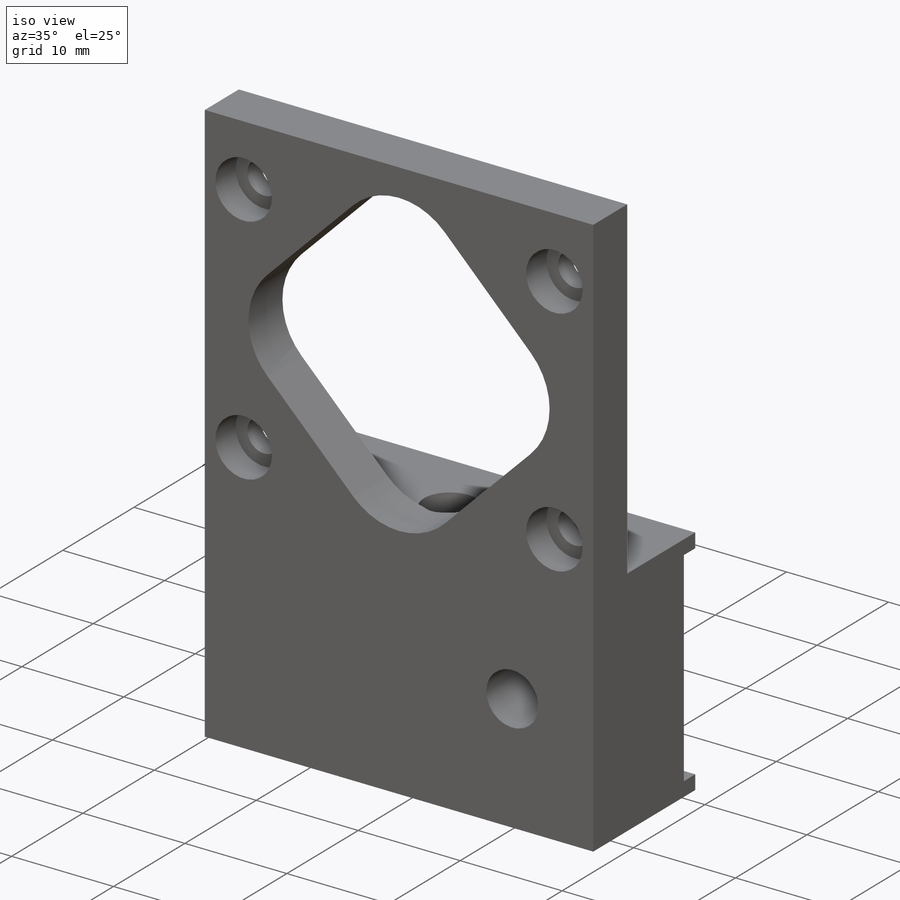
[diagram: iso view]
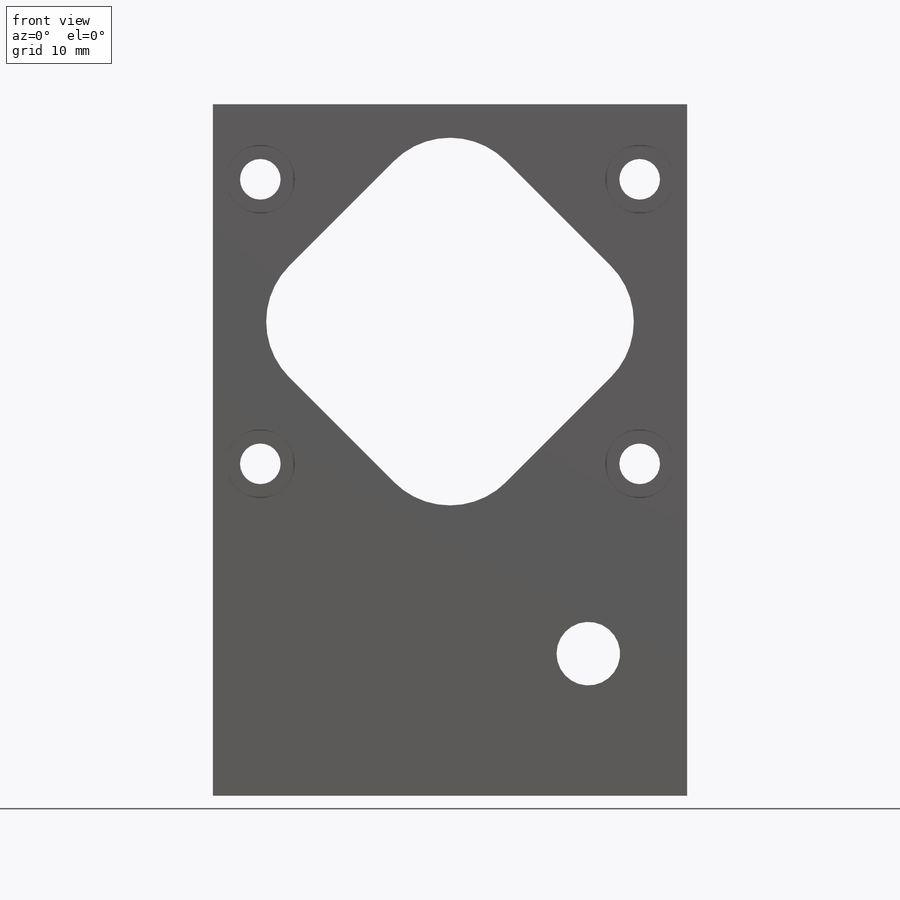
[diagram: front view]
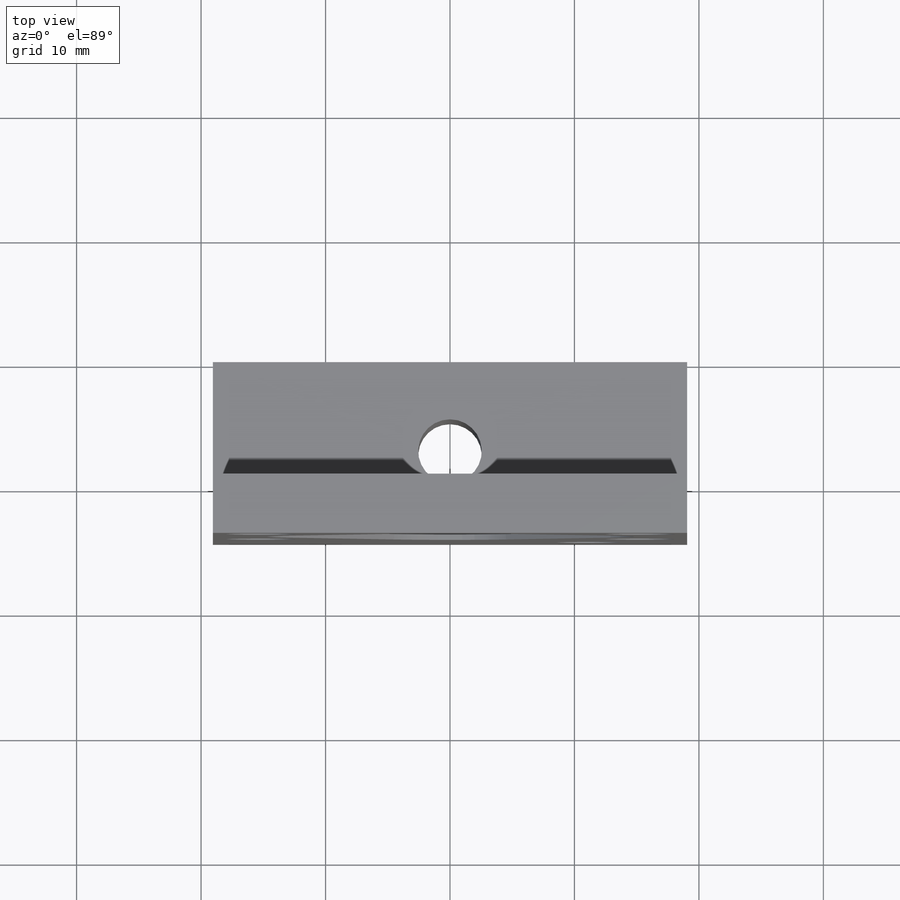
[diagram: top view]
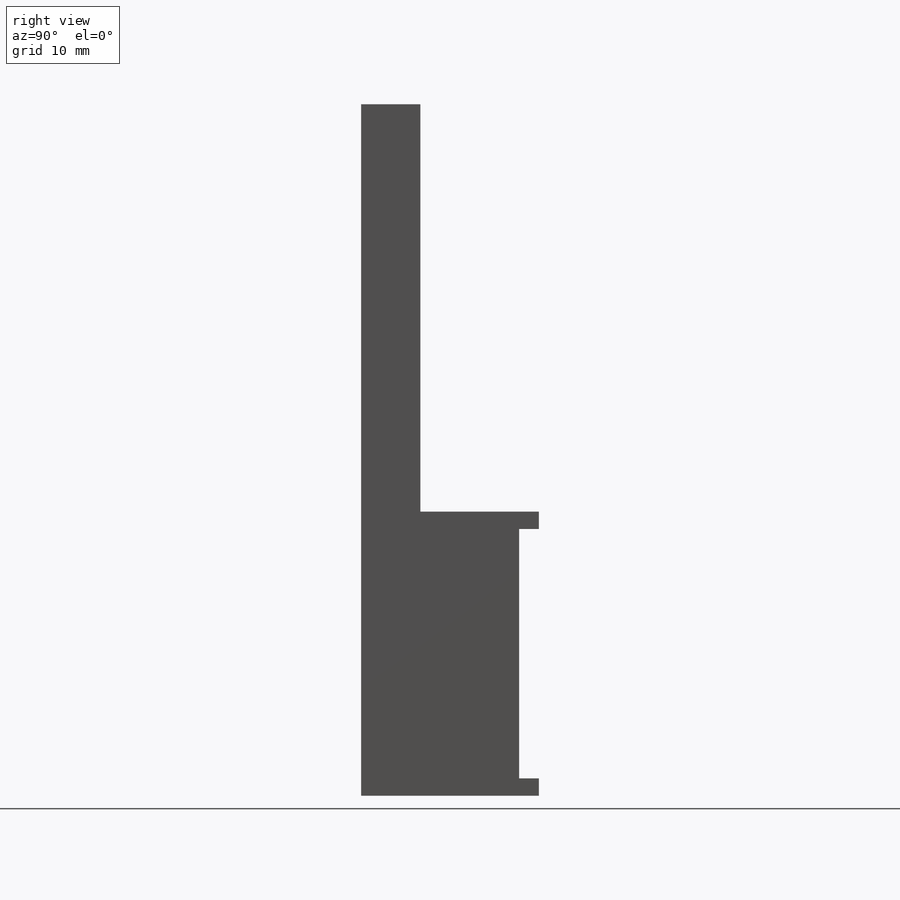
[diagram: right view]
SOLIDWORKS PART (.sldprt)
format: sldprt  version: not decoded by parser v0  size: 732,160 bytes
history: native  units: mm
features: sketch x12, cut_extrude x5, hole x3, fillet x2, material x1, extrude x1, thread x1 (+16 scaffold rows collapsed)
feature tree (41):
  scaffold x16  (default folders/planes/origin — collapsed)
  material  "6061-T6 Al"
  sketch  "Sketch32"  dims[D1=38.1mm D2=56.134mm]
  extrude  "Boss-Extrude3"  Depth=14.2875mm
  sketch  "Sketch33"  dims[D1=4.7625mm]
  cut_extrude  "Cut-Extrude7"  Depth=33.2994mm
  sketch  "Sketch34"  dims[D1=18.034mm]
  cut_extrude  "Cut-Extrude8"  [1 undecoded]
  sketch  "Sketch39"  dims[c1.D1=~3.96875mm c1.D2=3.175mm c1.D3=3.175mm c1.D4=7.9375mm c2.D1=1.397mm c2.D2=1.397mm]
  hole  "1/4-20 Tapped Hole5"  Diameter=5.1054mm Depth=22.8346mm
  sketch  "Sketch41"
  sketch  "Sketch40"  dims[hole-wizard template sketch: 47 standard entries collapsed; hole parameters kept: c15.Tap Drill Depth=22.8346mm c15.D3=~14.816244mm c15.Drill Angle=118.0deg]
  thread  "Hole Thread32"  Diameter=12.7mm  [1 undecoded]
  sketch  "Sketch42"  dims[D1=~24.60625mm D2=~21.323828mm]
  cut_extrude  "Cut-Extrude9"  [1 undecoded]
  fillet  "Fillet2"  Radius=6.35mm
  hole  "CBORE for #4 Socket Head Cap Screw1"  Diameter=3.2639mm Depth=14.2875mm
  sketch  "Sketch44"
  sketch  "Sketch43"  dims[hole-wizard template sketch: 42 standard entries collapsed; hole parameters kept: c12.Thru Hole Depth=14.2875mm c12.C'Bore Dia.=~5.55752mm c12.C'Bore Depth=2.8448mm]
  sketch  "Sketch48"
  cut_extrude  "Cut-Extrude10"  Depth=0.5715mm
  hole  "1/4-20 Tapped Hole8"  Diameter=5.1054mm Depth=14.2875mm
  sketch  "Sketch56"  dims[D1=7.9375mm]
  sketch  "Sketch55"  dims[hole-wizard template sketch: 60 standard entries collapsed; hole parameters kept: c18.Thru Tap Drill Depth=14.2875mm]
  fillet  "Hole Thread37"  Radius=6.35mm
  cut_extrude  "Cut-Extrude11"  Depth=1.5875mm
decode coverage: 19 of 24 modeling features carry decoded parameters
note: ~ marks probable driven/reference dimensions
note: 3 parameter values undecoded
note: suppression state not decoded; provenance and decode notes live in map.json
